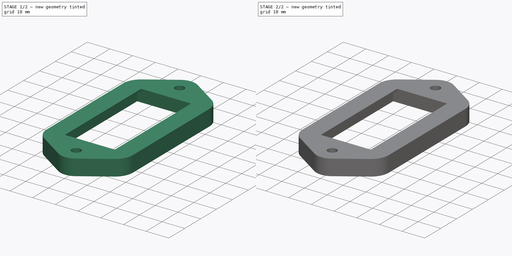
[diagram: build sequence overview — one tinted view per stage of 2, left to right]
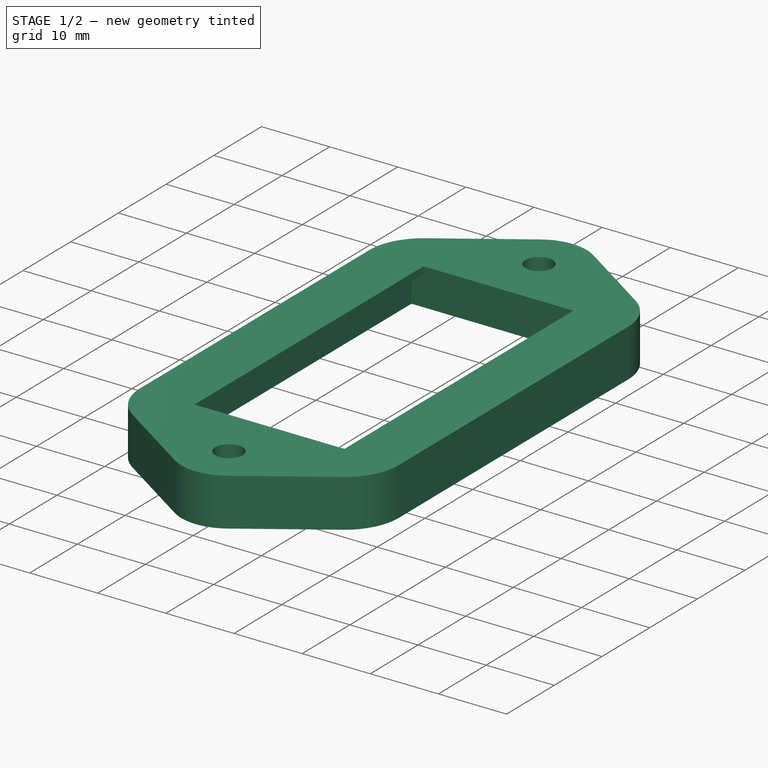
[diagram: stage 1 of 2 — iso view after this stage's code; geometry added in this stage tinted green]
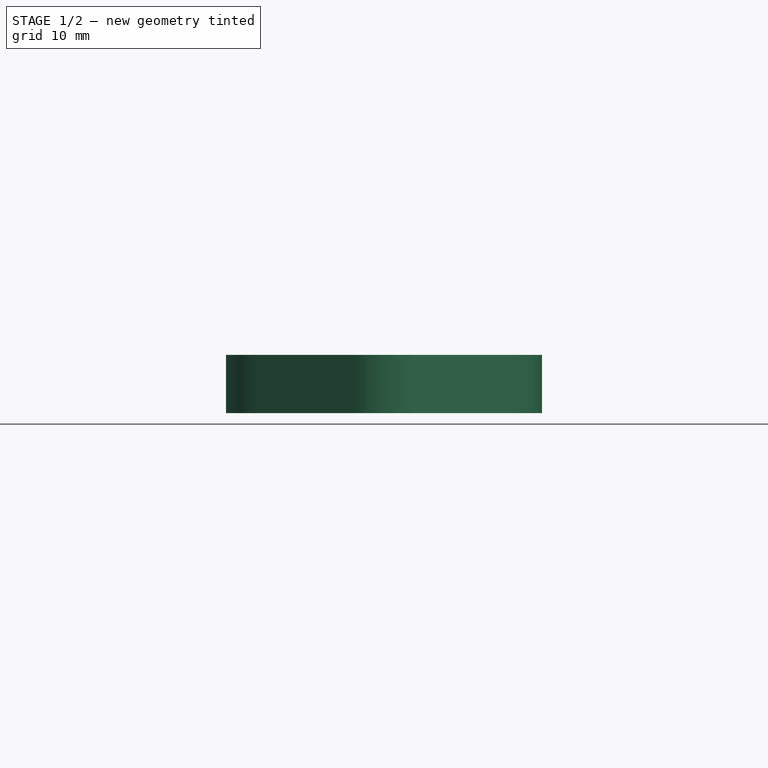
[diagram: stage 1 of 2 — front view after this stage's code; geometry added in this stage tinted green]
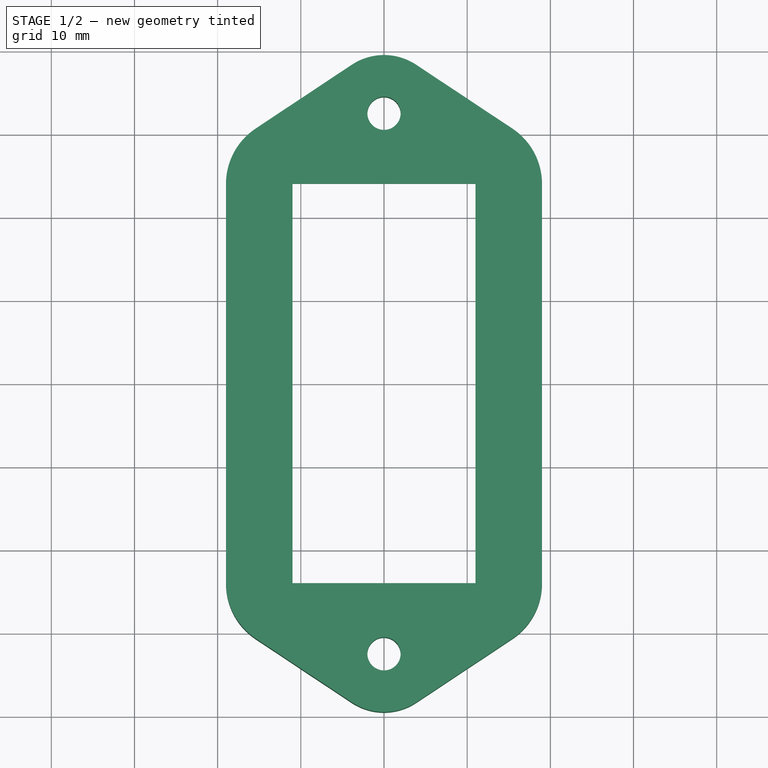
[diagram: stage 1 of 2 — top view after this stage's code; geometry added in this stage tinted green]
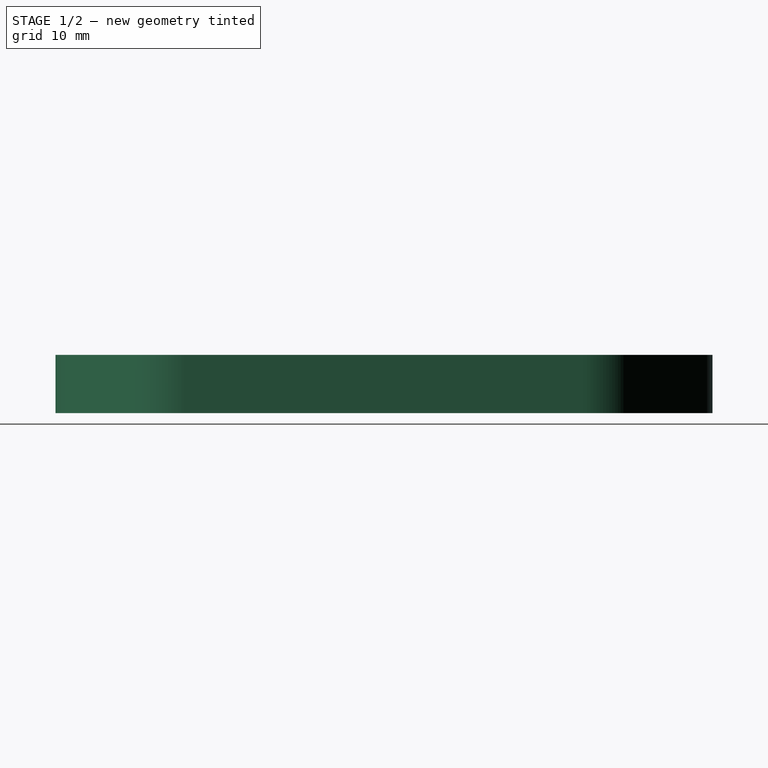
[diagram: stage 1 of 2 — right view after this stage's code; geometry added in this stage tinted green]
FCSTD DOCUMENT  (FreeCAD 0.20R29603 (Git))
Label: SwitchSurround
License: All rights reserved
LicenseURL: http://en.wikipedia.org/wiki/All_rights_reserved
objects: Sketcher::SketchObject×3, PartDesign::Pocket×2, PartDesign::Pad×1, PartDesign::Body×1
note: 10 computed .brp shape members not serialized (recipe doc carries the construction recipe); baked Part::Feature solids carry a one-line shape summary decoded from their .brp

FEATURE [Sketcher::SketchObject] Sketch
  FullyConstrained = true
  MapMode = 5
  Support = -> [XY_Plane]
  sketch-geometry (19):
    g0: LineSegment StartX=-11 StartY=24 StartZ=0 EndX=-11 EndY=-24 EndZ=0
    g1: LineSegment StartX=-11 StartY=-24 StartZ=0 EndX=11 EndY=-24 EndZ=0
    g2: LineSegment StartX=11 StartY=-24 StartZ=0 EndX=11 EndY=24 EndZ=0
    g3: LineSegment StartX=11 StartY=24 StartZ=0 EndX=-11 EndY=24 EndZ=0
    g4: GeomPoint X=0 Y=0 Z=0
    g5: LineSegment StartX=3.8706 StartY=38.3325 StartZ=0 EndX=15.4235 EndY=30.6658 EndZ=0
    g6: LineSegment StartX=19 StartY=24 StartZ=0 EndX=19 EndY=-24 EndZ=0
    g7: LineSegment StartX=15.4235 StartY=-30.6658 StartZ=0 EndX=3.8706 EndY=-38.3325 EndZ=0
    g8: LineSegment StartX=-3.8706 StartY=-38.3325 StartZ=0 EndX=-15.4235 EndY=-30.6658 EndZ=0
    g9: LineSegment StartX=-19 StartY=-24 StartZ=0 EndX=-19 EndY=24 EndZ=0
    g10: LineSegment StartX=-15.4235 StartY=30.6658 StartZ=0 EndX=-3.8706 EndY=38.3325 EndZ=0
    g11: Circle CenterX=0 CenterY=32.5 CenterZ=0 NormalX=0 NormalY=0 NormalZ=1 AngleXU=0 Radius=2
    g12: Circle CenterX=0 CenterY=-32.5 CenterZ=0 NormalX=0 NormalY=0 NormalZ=1 AngleXU=0 Radius=2
    g13: ArcOfCircle CenterX=11 CenterY=24 CenterZ=0 NormalX=0 NormalY=0 NormalZ=1 AngleXU=0 Radius=8 StartAngle=1e-16 EndAngle=0.984905
    g14: ArcOfCircle CenterX=-11 CenterY=24 CenterZ=0 NormalX=0 NormalY=0 NormalZ=1 AngleXU=0 Radius=8 StartAngle=2.15669 EndAngle=3.14159
    g15: ArcOfCircle CenterX=-11 CenterY=-24 CenterZ=0 NormalX=0 NormalY=0 NormalZ=1 AngleXU=0 Radius=8 StartAngle=3.14159 EndAngle=4.1265
    g16: ArcOfCircle CenterX=11 CenterY=-24 CenterZ=0 NormalX=0 NormalY=0 NormalZ=1 AngleXU=0 Radius=8 StartAngle=5.29828 EndAngle=6.28319
    g17: ArcOfCircle CenterX=0 CenterY=32.5 CenterZ=0 NormalX=0 NormalY=0 NormalZ=1 AngleXU=0 Radius=7 StartAngle=0.984905 EndAngle=2.15669
    g18: ArcOfCircle CenterX=0 CenterY=-32.5 CenterZ=0 NormalX=0 NormalY=0 NormalZ=1 AngleXU=0 Radius=7 StartAngle=4.1265 EndAngle=5.29828
  constraints (41):
    c: Coincident(g0,g1)
    c: Coincident(g1,g2)
    c: Coincident(g2,g3)
    c: Coincident(g3,g0)
    c: Horizontal(g1)
    c: Horizontal(g3)
    c: Vertical(g0)
    c: Vertical(g2)
    c: Symmetric(g1,g0,g4)
    c: DistanceX(g3,g3) = 22
    c: DistanceY(g2,g2) = 48
    c: PointOnObject(g11,g-2)
    c: Symmetric(g11,g12,g-1)
    c: Equal(g12,g11)
    c: Diameter(g11) = 4
    c: Coincident(g4,g-1)
    c: Tangent(g5,g13) = 1.5708
    c: Tangent(g6,g13) = 1.5708
    c: Tangent(g9,g14) = 1.5708
    c: Tangent(g10,g14) = 1.5708
    c: Tangent(g8,g15) = 1.5708
    c: Tangent(g9,g15) = 1.5708
    c: Tangent(g6,g16) = 1.5708
    c: Tangent(g7,g16) = 1.5708
    c: Tangent(g5,g17) = 1.5708
    c: Tangent(g10,g17) = 1.5708
    c: Tangent(g7,g18) = 1.5708
    c: Tangent(g8,g18) = 1.5708
    c: Symmetric(g14,g13,g-2)
    c: Equal(g14,g13)
    c: Equal(g13,g15)
    c: Equal(g15,g16)
    c: Symmetric(g15,g14,g-1)
    c: Symmetric(g13,g16,g-1)
    c: Symmetric(g18,g17,g-1)
    c: Coincident(g12,g18)
    c: DistanceY(g12,g11) = 65
    c: Coincident(g14,g0)
    c: Equal(g18,g17)
    c: Radius(g18) = 7
    c: Radius(g16) = 8
FEATURE [PartDesign::Pad] Pad
  Direction = (0,0,1)
  Length = 7
  Length2 = 10
  Profile = -> Sketch
  ReferenceAxis = -> Sketch [N_Axis]
  Type = 0
FEATURE [Sketcher::SketchObject] Sketch001
  FullyConstrained = true
  MapMode = 5
  Support = -> [XY_Plane]
  sketch-geometry (5):
    g0: LineSegment StartX=-14.7 StartY=-26.75 StartZ=0 EndX=-14.7 EndY=26.75 EndZ=0
    g1: LineSegment StartX=-14.7 StartY=26.75 StartZ=0 EndX=14.7 EndY=26.75 EndZ=0
    g2: LineSegment StartX=14.7 StartY=26.75 StartZ=0 EndX=14.7 EndY=-26.75 EndZ=0
    g3: LineSegment StartX=14.7 StartY=-26.75 StartZ=0 EndX=-14.7 EndY=-26.75 EndZ=0
    g4: GeomPoint X=0 Y=0 Z=0
  constraints (12):
    c: Coincident(g0,g1)
    c: Coincident(g1,g2)
    c: Coincident(g2,g3)
    c: Coincident(g3,g0)
    c: Horizontal(g1)
    c: Horizontal(g3)
    c: Vertical(g0)
    c: Vertical(g2)
    c: Symmetric(g1,g0,g4)
    c: Coincident(g4,g-1)
    c: DistanceX(g1,g1) = 29.4
    c: DistanceY(g2,g2) = 53.5
FEATURE [PartDesign::Pocket] Pocket
  BaseFeature = -> Pad
  Direction = (0,0,-1)
  Length = 6
  Length2 = 5
  Profile = -> Sketch001
  ReferenceAxis = -> Sketch001 [N_Axis]
  Reversed = true
  Type = 0
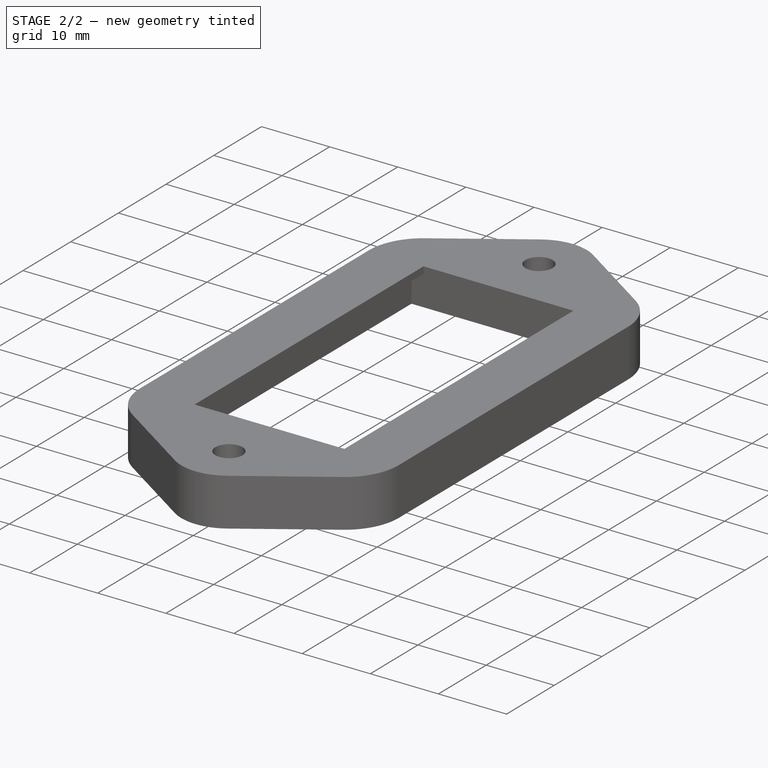
[diagram: stage 2 of 2 — iso view after this stage's code; geometry added in this stage tinted green]
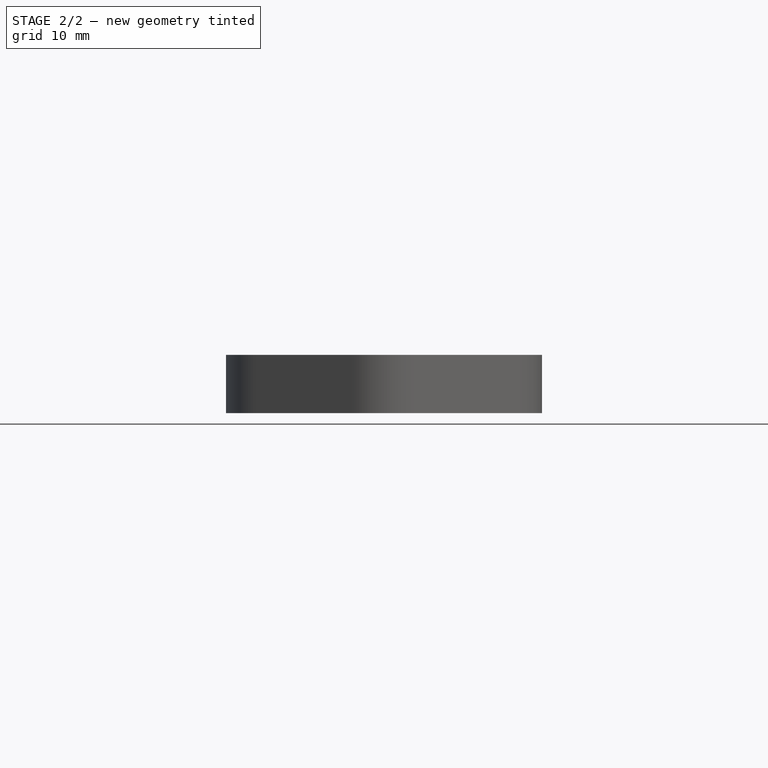
[diagram: stage 2 of 2 — front view after this stage's code; geometry added in this stage tinted green]
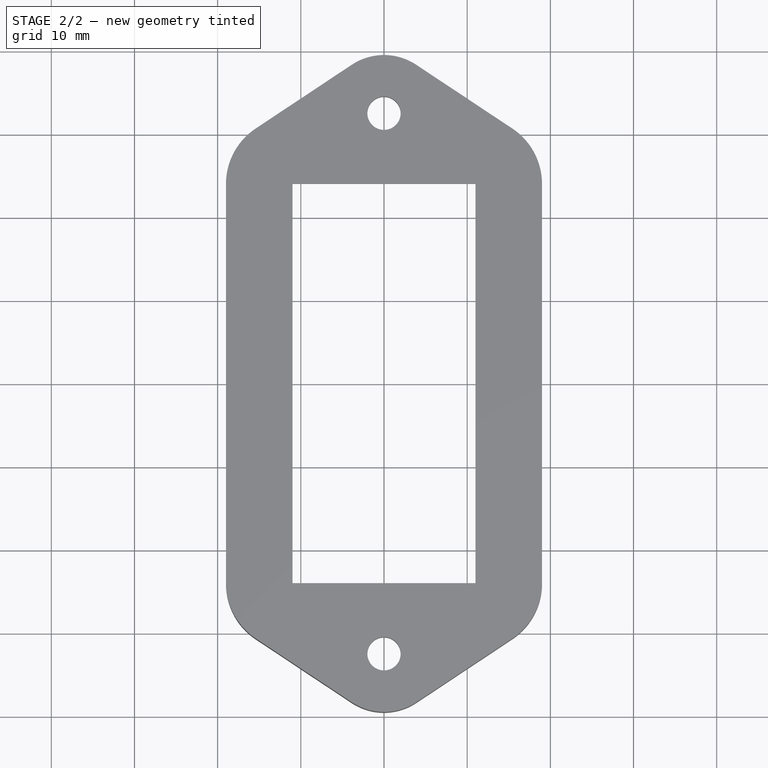
[diagram: stage 2 of 2 — top view after this stage's code; geometry added in this stage tinted green]
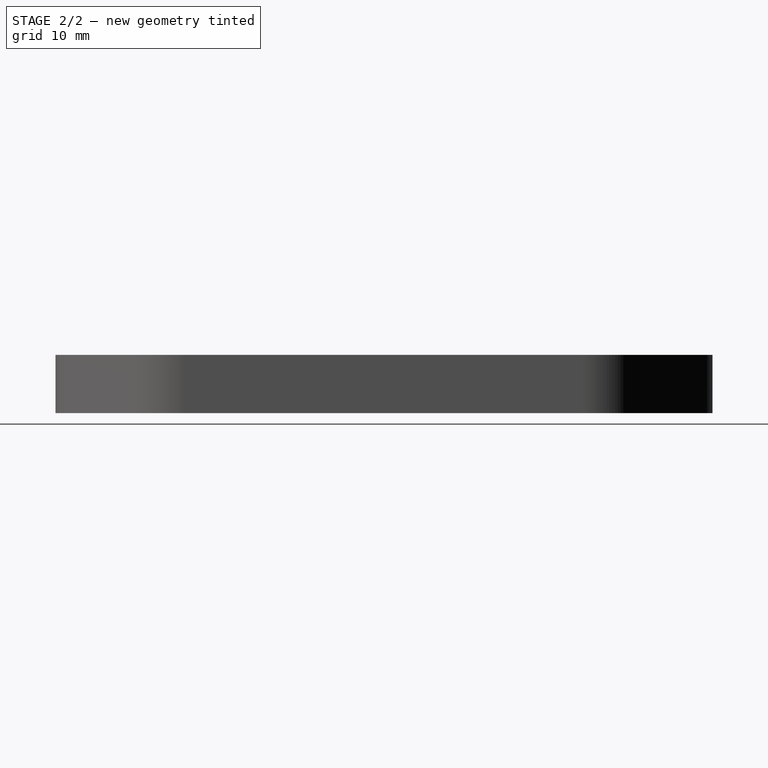
[diagram: stage 2 of 2 — right view after this stage's code; geometry added in this stage tinted green]
FEATURE [Sketcher::SketchObject] Sketch002
  ExternalGeometry = -> [Pocket]
  FullyConstrained = true
  MapMode = 5
  Placement = pos=(0,0,0) rot=(1,0,0;3.14159rad)
  Support = -> [Pocket]
  sketch-geometry (2):
    g0: Circle CenterX=0 CenterY=-32.5 CenterZ=0 NormalX=0 NormalY=0 NormalZ=1 AngleXU=0 Radius=3.5
    g1: Circle CenterX=0 CenterY=32.5 CenterZ=0 NormalX=0 NormalY=0 NormalZ=1 AngleXU=0 Radius=3.5
  constraints (4):
    c: Coincident(g0,g-4)
    c: Coincident(g1,g-3)
    c: Equal(g0,g1)
    c: Diameter(g1) = 7
FEATURE [PartDesign::Pocket] Pocket001
  BaseFeature = -> Pocket
  Direction = (0,0,1)
  Length = 3
  Length2 = 5
  Profile = -> Sketch002
  ReferenceAxis = -> Sketch002 [N_Axis]
  Type = 0
FEATURE [PartDesign::Body] Body
  Group = -> [Sketch,Pad,Sketch001,Pocket,Sketch002,Pocket001]
  Origin = -> Origin
  Tip = -> Pocket001
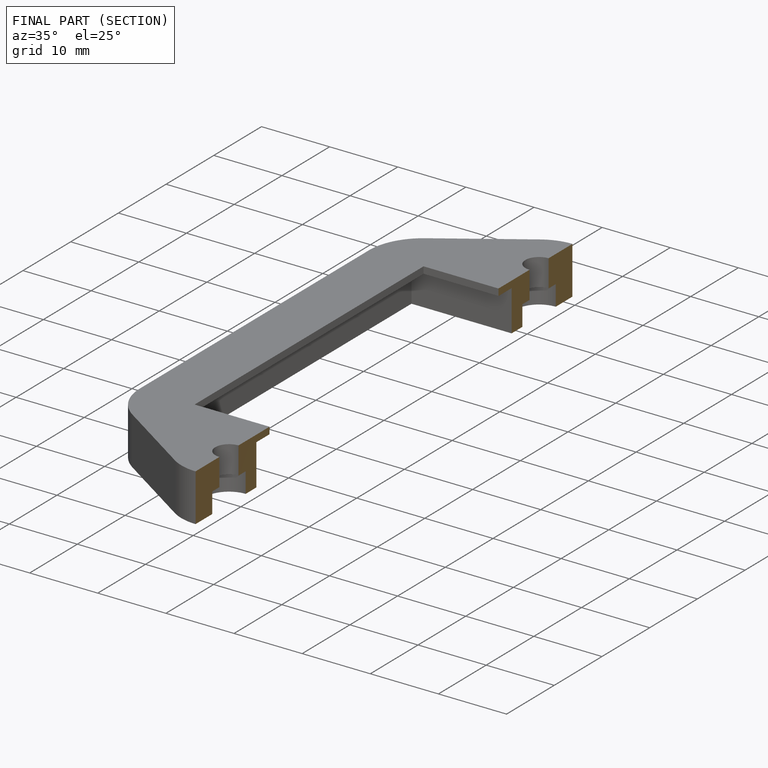
[diagram: finished part — half-section view (interior)]
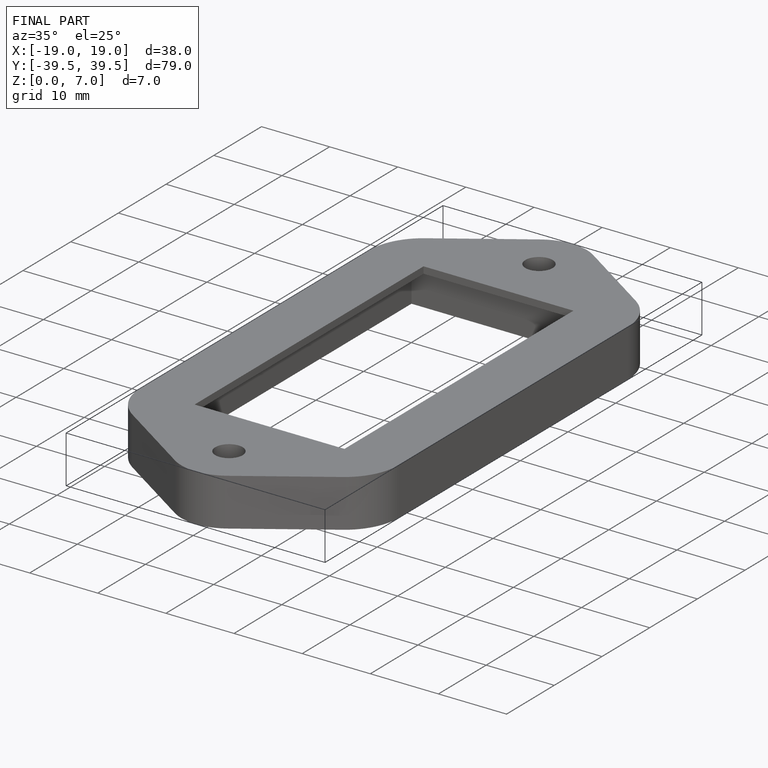
[diagram: finished part — iso view with bounding-box wireframe]
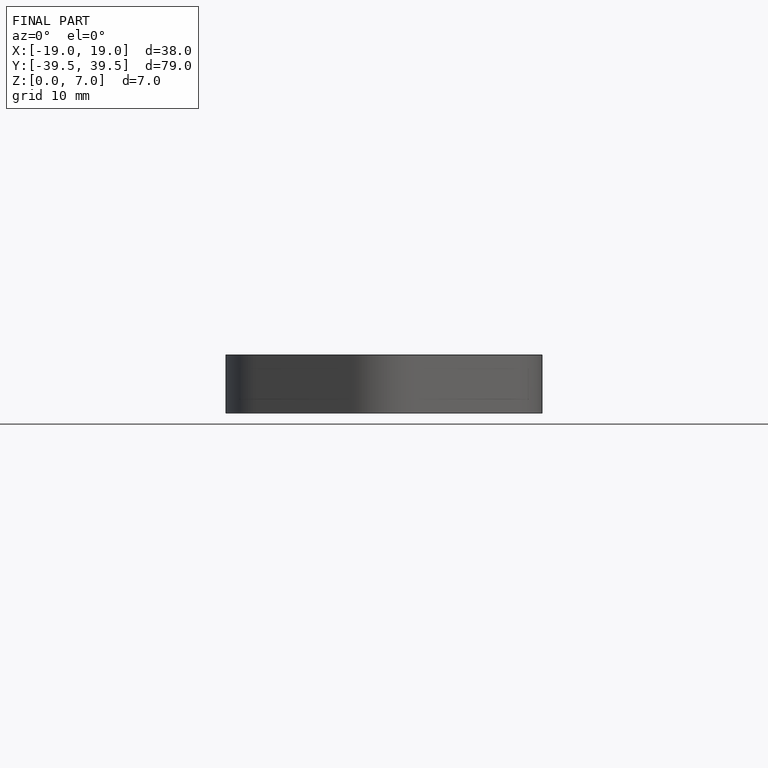
[diagram: finished part — front view with bounding-box wireframe]
